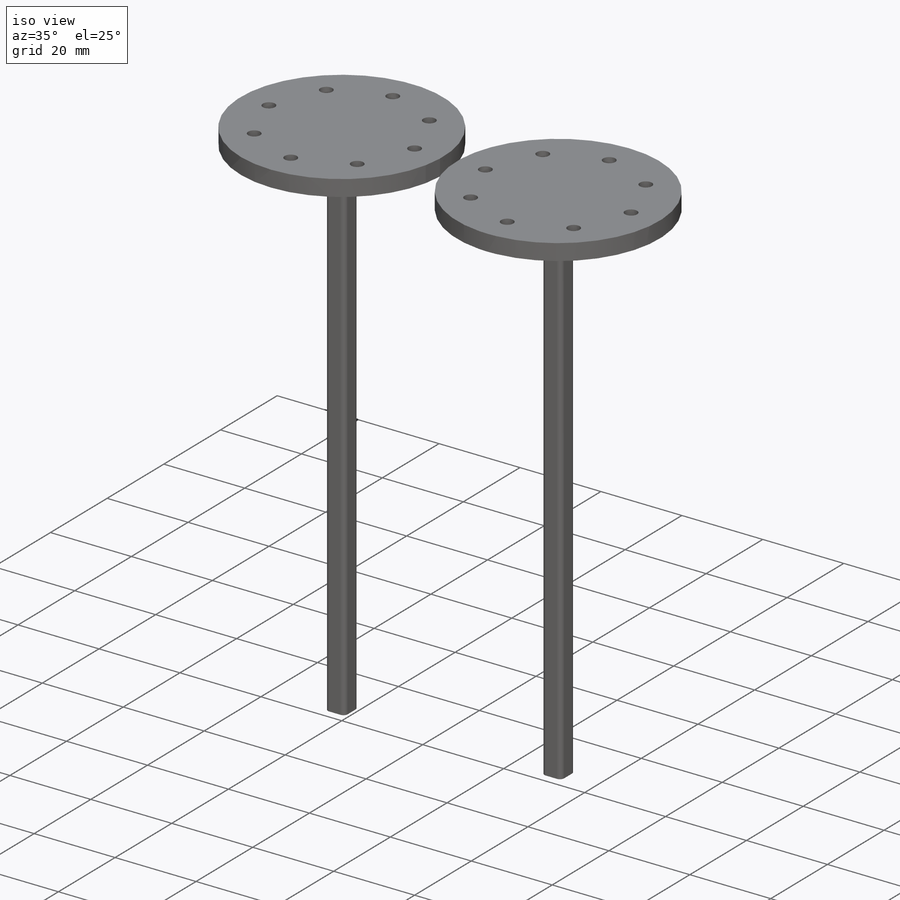
[diagram: iso view]
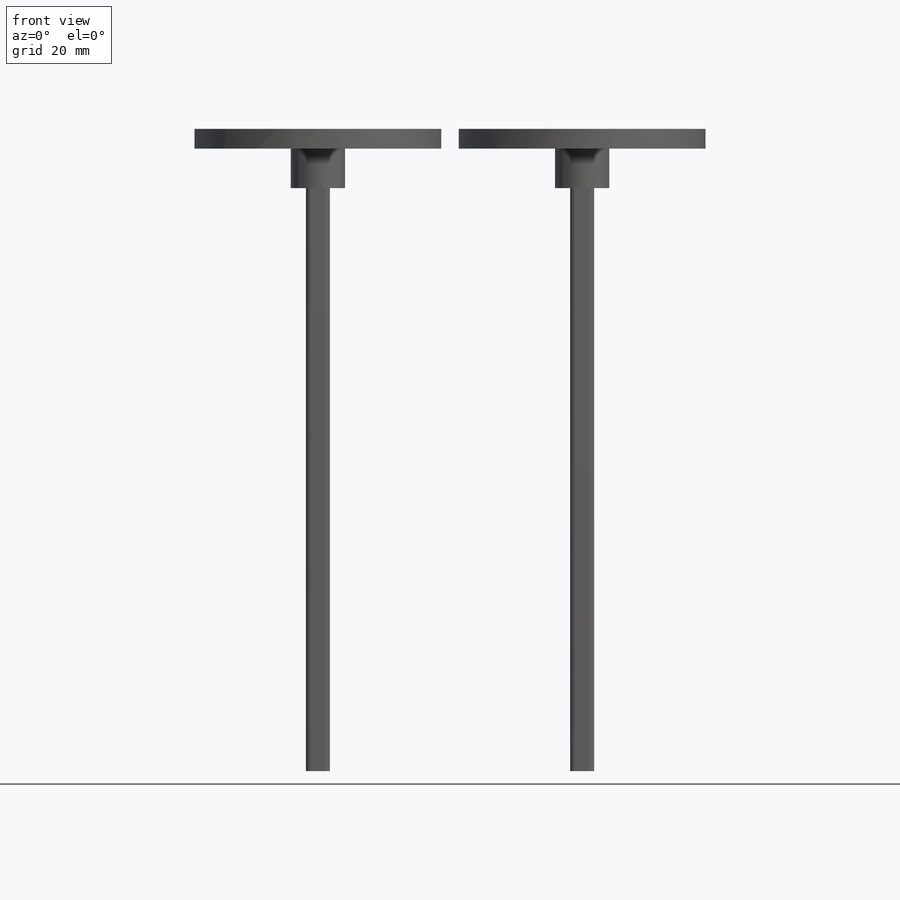
[diagram: front view]
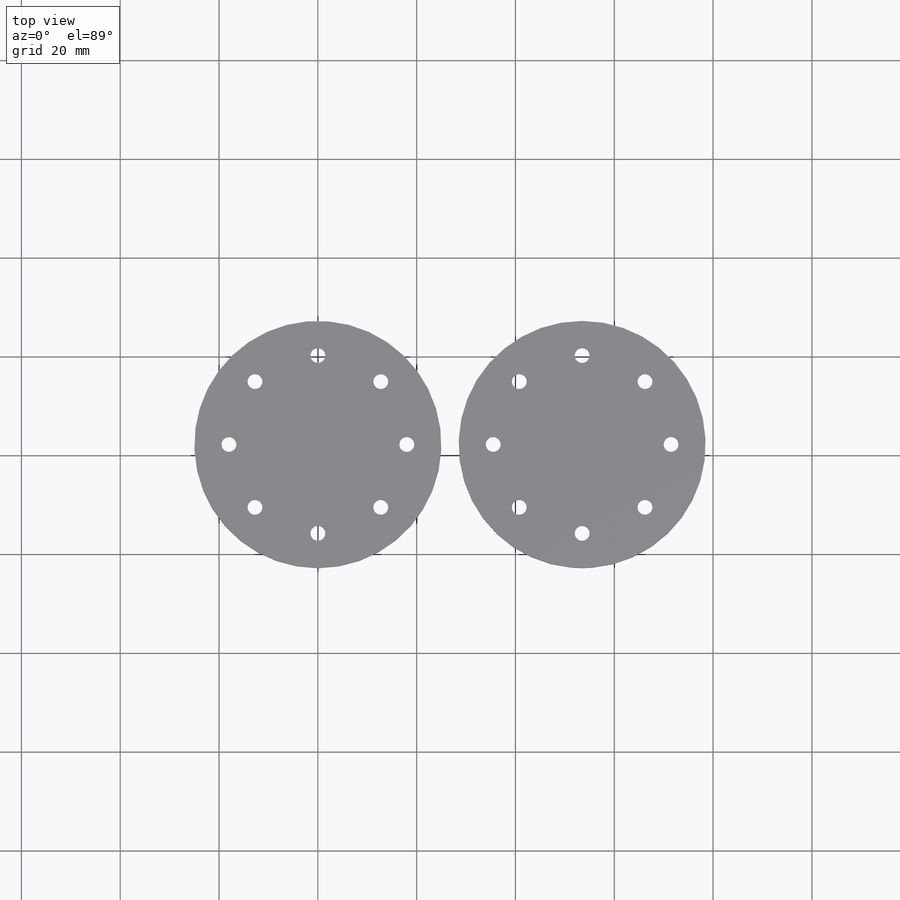
[diagram: top view]
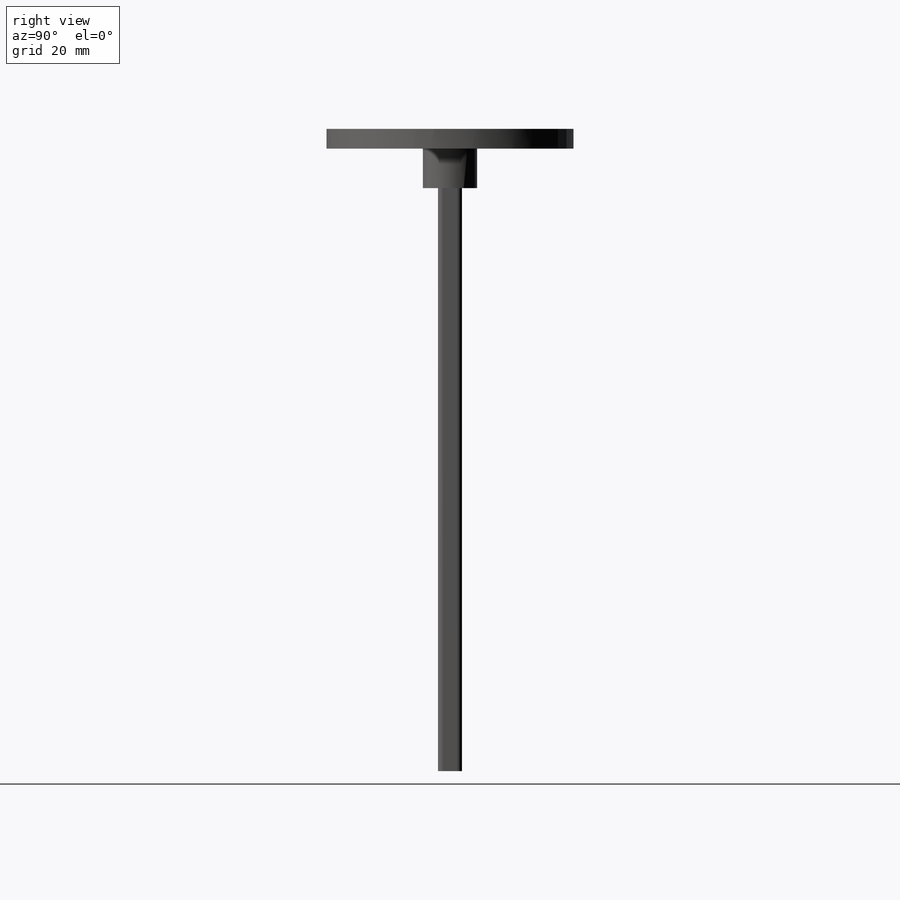
[diagram: right view]
SOLIDWORKS PART (.sldprt)
format: sldprt  version: not decoded by parser v0  size: 388,608 bytes
history: native  units: mm
features: sketch x12, extrude x7, cut_extrude x5, plane x3, pattern_circular x2, fillet x2, material x1 (+9 scaffold rows collapsed)
feature tree (41):
  scaffold x9  (default folders/planes/origin — collapsed)
  material  "材质 <未指定>"
  plane  "前视基准面"
  plane  "上视基准面"
  plane  "右视基准面"
  sketch  "草图1"  dims[D1=40.0mm]
  extrude  "凸台-拉伸1"  Depth=4mm
  sketch  "草图2"
  extrude  "凸台-拉伸2"  Depth=8mm
  sketch  "草图3"  dims[D1=4.85mm D2=4.85mm]
  extrude  "凸台-拉伸3"  Depth=118mm
  sketch  "草图5"  dims[D1=50.0mm]
  extrude  "凸台-拉伸4"  Depth=4mm
  sketch  "草图6"  dims[c1.D1=18.0mm c1.D2=18.0mm c1.D3=18.0mm c2.D1=5.6mm]
  cut_extrude  "切除-拉伸1"  Depth=2.5mm
  sketch  "草图7"  dims[D1=3.0mm]
  cut_extrude  "切除-拉伸2"  Depth=2.5mm
  pattern_circular  "阵列(圆周)1"  Count=8 Angle=360deg
  fillet  "圆角1"  Radius=1mm
  sketch  "草图9"  dims[D1=50.0mm]
  extrude  "凸台-拉伸5"  Depth=4mm
  sketch  "草图10"  dims[D1=11.0mm]
  extrude  "凸台-拉伸6"  Depth=8mm
  sketch  "草图11"  dims[D1=4.85mm D2=4.85mm]
  extrude  "凸台-拉伸7"  Depth=118mm
  sketch  "草图12"  dims[D1=18.0mm D2=18.0mm D3=5.6mm]
  cut_extrude  "切除-拉伸7"  Depth=128.5mm
  sketch  "草图13"  dims[D1=3.0mm]
  cut_extrude  "切除-拉伸8"  Depth=128.5mm
  pattern_circular  "阵列(圆周)2"  Count=8 Angle=360deg
  fillet  "圆角2"  Radius=1mm
  sketch  "草图14"  dims[D1=11.0mm]
  cut_extrude  "切除-拉伸9"  Depth=8mm
decode coverage: 27 of 28 modeling features carry decoded parameters
note: suppression state not decoded; provenance and decode notes live in map.json
